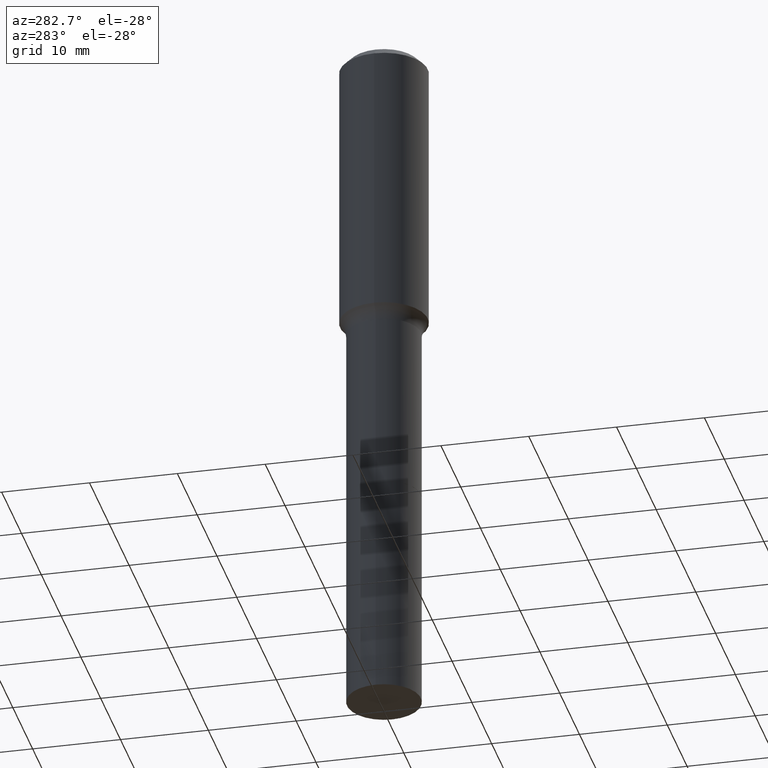
[diagram: clean part render]
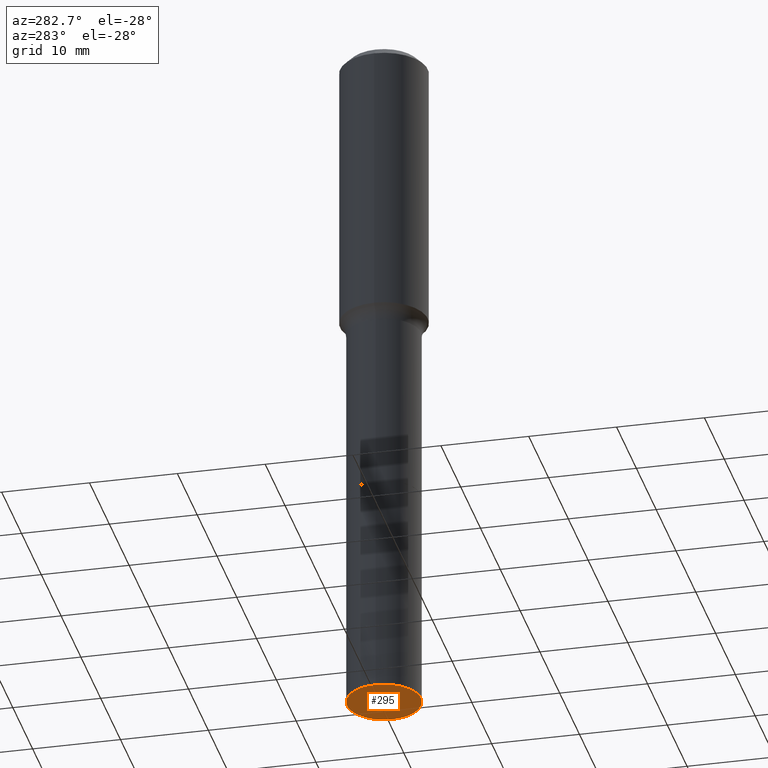
[diagram: same view with one face highlighted and labeled with its STEP entity id]
A machine part, auxiliary view. The second image highlights one B-rep face of the part: STEP entity #295.
In plain terms, the highlighted planar face has unit normal (0, -0, -1).
Its self-contained STEP definition (entity closure, byte-faithful):
#1 = EDGE_CURVE ( 'NONE', #290, #178, #314, .T. ) ;
#42 = EDGE_CURVE ( 'NONE', #178, #290, #399, .T. ) ;
#73 = DIRECTION ( 'NONE',  ( -1.000000000000000000, 6.982962677686265922E-15, -4.876176775795935793E-29 ) ) ;
#77 = FACE_OUTER_BOUND ( 'NONE', #121, .T. ) ;
#110 = CARTESIAN_POINT ( 'NONE',  ( 7.702248551960706711E-29, -1.099676962482037231E-14, -3.149600000000000399 ) ) ;
#121 = EDGE_LOOP ( 'NONE', ( #441, #397 ) ) ;
#142 = CARTESIAN_POINT ( 'NONE',  ( -0.1660000000000002307, -8.057562088681656781E-15, -3.149600000000000399 ) ) ;
#166 = DIRECTION ( 'NONE',  ( 1.000000000000000000, -6.982962677686265133E-15, 0.000000000000000000 ) ) ;
#178 = VERTEX_POINT ( 'NONE', #142 ) ;
#219 = AXIS2_PLACEMENT_3D ( 'NONE', #498, #487, #367 ) ;
#231 = DIRECTION ( 'NONE',  ( 2.438088387897960049E-29, -3.491481338843145188E-15, -1.000000000000000000 ) ) ;
#256 = CARTESIAN_POINT ( 'NONE',  ( 7.702248551960706711E-29, -1.099676962482037231E-14, -3.149600000000000399 ) ) ;
#263 = CARTESIAN_POINT ( 'NONE',  ( 0.1660000000000002307, -1.215594142931629328E-14, -3.149600000000000399 ) ) ;
#275 = AXIS2_PLACEMENT_3D ( 'NONE', #110, #231, #73 ) ;
#290 = VERTEX_POINT ( 'NONE', #263 ) ;
#295 = ADVANCED_FACE ( 'NONE', ( #77 ), #471, .T. ) ;
#314 = CIRCLE ( 'NONE', #219, 0.1660000000000002307 ) ;
#367 = DIRECTION ( 'NONE',  ( 1.000000000000000000, -6.982962677686265133E-15, 0.000000000000000000 ) ) ;
#397 = ORIENTED_EDGE ( 'NONE', *, *, #42, .F. ) ;
#399 = CIRCLE ( 'NONE', #403, 0.1660000000000002307 ) ;
#403 = AXIS2_PLACEMENT_3D ( 'NONE', #256, #458, #166 ) ;
#441 = ORIENTED_EDGE ( 'NONE', *, *, #1, .F. ) ;
#458 = DIRECTION ( 'NONE',  ( -2.445468806185136597E-29, 3.491481338843145583E-15, 1.000000000000000000 ) ) ;
#471 = PLANE ( 'NONE',  #275 ) ;
#487 = DIRECTION ( 'NONE',  ( -2.445468806185136597E-29, 3.491481338843145583E-15, 1.000000000000000000 ) ) ;
#498 = CARTESIAN_POINT ( 'NONE',  ( 7.702248551960706711E-29, -1.099676962482037231E-14, -3.149600000000000399 ) ) ;